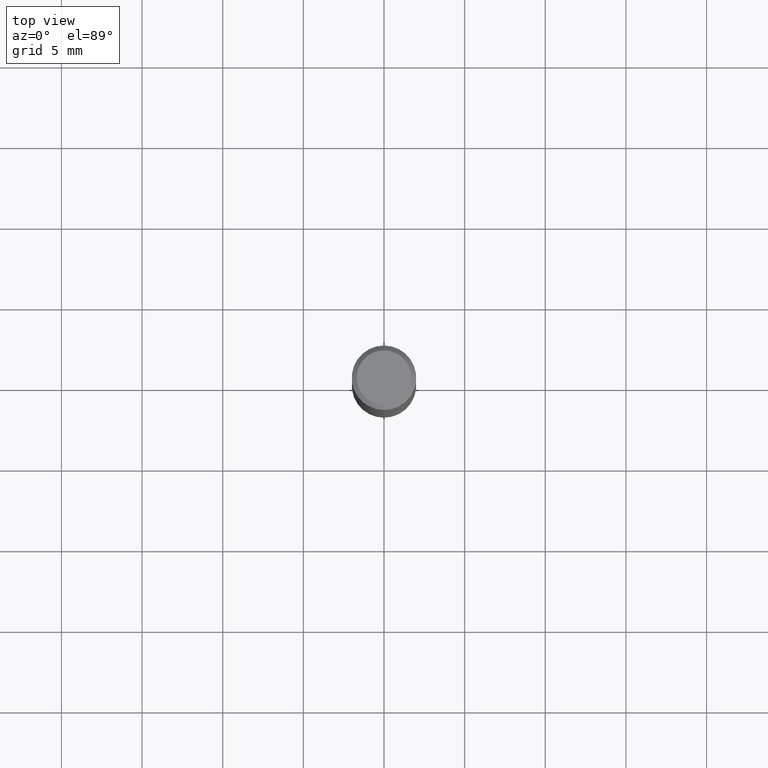
[diagram: clean part render]
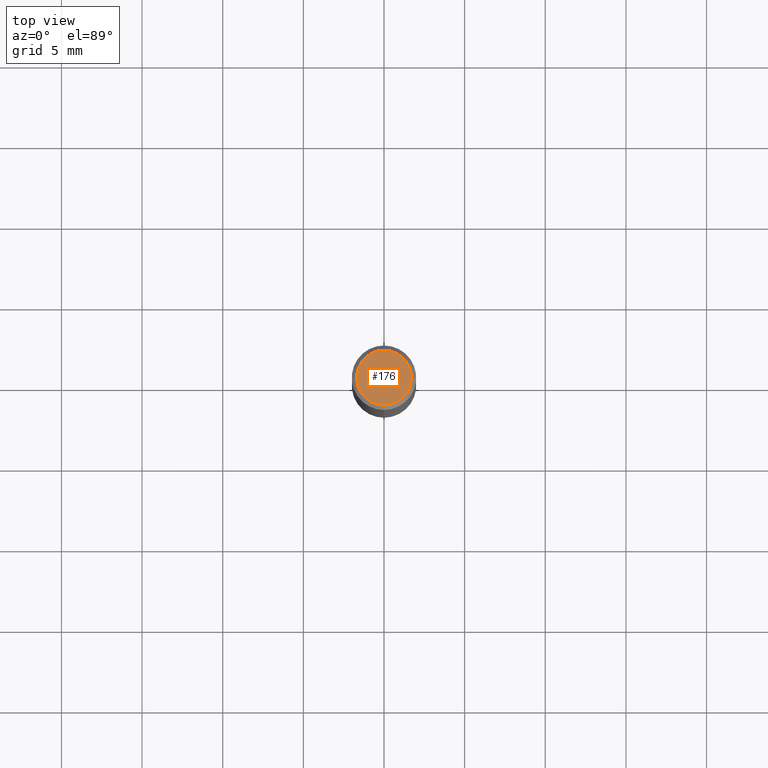
[diagram: same view with one face highlighted and labeled with its STEP entity id]
A machine part, top view. The second image highlights one B-rep face of the part: STEP entity #176.
In plain terms, the highlighted planar face has unit normal (-0, 0, 1).
Its self-contained STEP definition (entity closure, byte-faithful):
#92=EDGE_CURVE('',#150,#158,#229,.T.);
#150=VERTEX_POINT('',#298);
#158=VERTEX_POINT('',#306);
#176=ADVANCED_FACE('',(#327),#328,.T.);
#206=EDGE_CURVE('',#158,#150,#359,.T.);
#229=CIRCLE('',#375,1.7);
#298=CARTESIAN_POINT('',(0.0,1.7,0.0));
#306=CARTESIAN_POINT('',(2.08183080149804E-016,-1.7,0.0));
#327=FACE_OUTER_BOUND('',#491,.T.);
#328=PLANE('',#492);
#359=CIRCLE('',#536,1.7);
#375=AXIS2_PLACEMENT_3D('',#542,#543,#544);
#491=EDGE_LOOP('',(#681,#682));
#492=AXIS2_PLACEMENT_3D('',#683,#684,#685);
#536=AXIS2_PLACEMENT_3D('',#710,#711,#712);
#542=CARTESIAN_POINT('',(0.0,0.0,0.0));
#543=DIRECTION('',(0.0,0.0,-1.0));
#544=DIRECTION('',(0.0,1.0,0.0));
#681=ORIENTED_EDGE('',*,*,#92,.F.);
#682=ORIENTED_EDGE('',*,*,#206,.F.);
#683=CARTESIAN_POINT('',(0.0,0.85,0.0));
#684=DIRECTION('',(-0.0,0.0,1.0));
#685=DIRECTION('',(0.0,-1.0,0.0));
#710=CARTESIAN_POINT('',(0.0,0.0,0.0));
#711=DIRECTION('',(0.0,0.0,-1.0));
#712=DIRECTION('',(0.0,1.0,0.0));